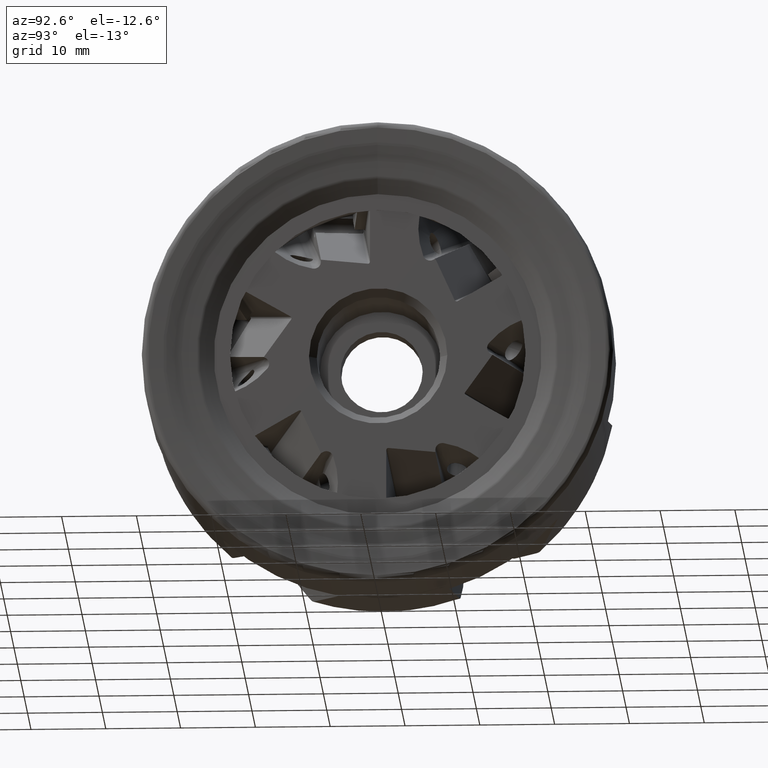
[diagram: clean part render]
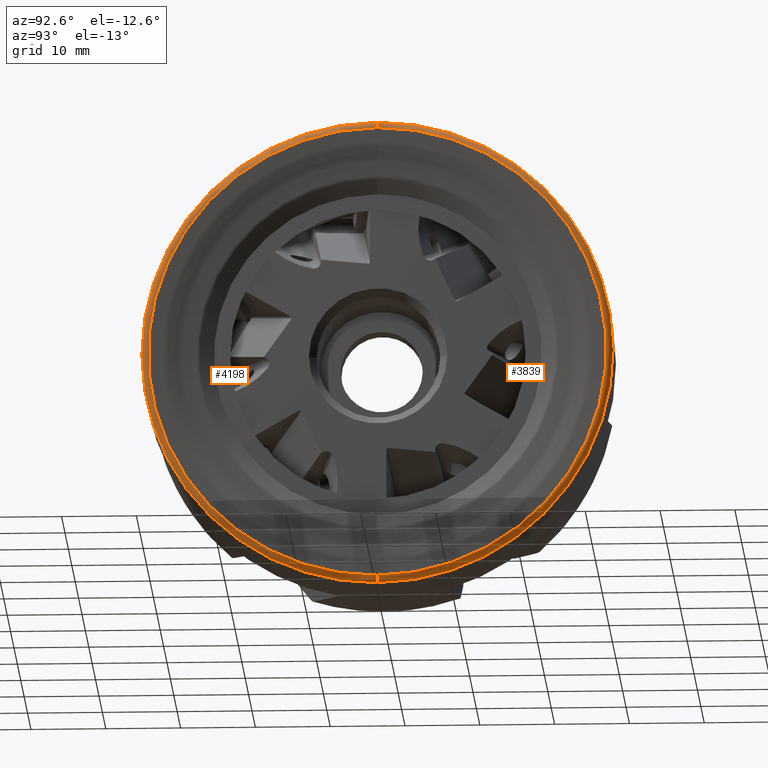
[diagram: same view with one multi-face feature highlighted, each face labeled with its STEP entity id]
A machine part, auxiliary view. The highlighted faces form ONE feature: a constant-radius fillet chain: 2 tangent blend faces with common blend radius 0.8209 mm. The faces share edges in the B-rep.
Their STEP definitions:
[1] entity #3839 (Torus):
#1625 = EDGE_LOOP ( 'NONE', ( #2797, #2800, #2701, #2794 ) ) ;
#2701 = ORIENTED_EDGE ( 'NONE', *, *, #7894, .F. ) ;
#2794 = ORIENTED_EDGE ( 'NONE', *, *, #7993, .F. ) ;
#2797 = ORIENTED_EDGE ( 'NONE', *, *, #7988, .T. ) ;
#2800 = ORIENTED_EDGE ( 'NONE', *, *, #7983, .T. ) ;
#3210 = CIRCLE ( 'NONE', #9495, 0.8209166078095020400 ) ;
#3282 = VERTEX_POINT ( 'NONE', #11634 ) ;
#3346 = VERTEX_POINT ( 'NONE', #11698 ) ;
#3373 = VERTEX_POINT ( 'NONE', #11725 ) ;
#3839 = ADVANCED_FACE ( 'NONE', ( #5910 ), #5915, .T. ) ;
#3880 = VERTEX_POINT ( 'NONE', #5283 ) ;
#5217 = DIRECTION ( 'NONE',  ( 1.000000000000000000, -0.0000000000000000000, -0.0000000000000000000 ) ) ;
#5218 = CARTESIAN_POINT ( 'NONE',  ( 0.9290833921905815600, 0.0000000000000000000, 0.0000000000000000000 ) ) ;
#5220 = DIRECTION ( 'NONE',  ( 0.0000000000000000000, 0.0000000000000000000, -1.000000000000000000 ) ) ;
#5283 = CARTESIAN_POINT ( 'NONE',  ( 1.748095682484515700, 0.0000000000000000000, -30.62637219587720900 ) ) ;
#5910 = FACE_OUTER_BOUND ( 'NONE', #1625, .T. ) ;
#5915 = TOROIDAL_SURFACE ( 'NONE', #7348, 30.68225551472054800, 0.8209166078095036000 ) ;
#7159 = CIRCLE ( 'NONE', #9454, 30.62637219587720900 ) ;
#7269 = CIRCLE ( 'NONE', #9491, 0.8209166078095020400 ) ;
#7274 = CIRCLE ( 'NONE', #9492, 31.49219251073846200 ) ;
#7348 = AXIS2_PLACEMENT_3D ( 'NONE', #5218, #5217, #5220 ) ;
#7894 = EDGE_CURVE ( 'NONE', #3880, #3282, #7159, .T. ) ;
#7983 = EDGE_CURVE ( 'NONE', #3346, #3282, #7269, .T. ) ;
#7988 = EDGE_CURVE ( 'NONE', #3373, #3346, #7274, .T. ) ;
#7993 = EDGE_CURVE ( 'NONE', #3373, #3880, #3210, .T. ) ;
#9454 = AXIS2_PLACEMENT_3D ( 'NONE', #10433, #10435, #10437 ) ;
#9491 = AXIS2_PLACEMENT_3D ( 'NONE', #11155, #11159, #11160 ) ;
#9492 = AXIS2_PLACEMENT_3D ( 'NONE', #11195, #11198, #11200 ) ;
#9495 = AXIS2_PLACEMENT_3D ( 'NONE', #11264, #11267, #11269 ) ;
#10433 = CARTESIAN_POINT ( 'NONE',  ( 1.748095682484515700, 0.0000000000000000000, 0.0000000000000000000 ) ) ;
#10435 = DIRECTION ( 'NONE',  ( 1.000000000000000000, -0.0000000000000000000, -0.0000000000000000000 ) ) ;
#10437 = DIRECTION ( 'NONE',  ( 0.0000000000000000000, 0.0000000000000000000, -1.000000000000000000 ) ) ;
#11155 = CARTESIAN_POINT ( 'NONE',  ( 0.9290833921905815600, 3.757492600672375100E-015, 30.68225551472054800 ) ) ;
#11159 = DIRECTION ( 'NONE',  ( 0.0000000000000000000, 1.000000000000000000, -1.224646799147353200E-016 ) ) ;
#11160 = DIRECTION ( 'NONE',  ( 0.0000000000000000000, 1.224646799147353000E-016, 1.000000000000000000 ) ) ;
#11195 = CARTESIAN_POINT ( 'NONE',  ( 1.062897216061452700, 0.0000000000000000000, 0.0000000000000000000 ) ) ;
#11198 = DIRECTION ( 'NONE',  ( 1.000000000000000000, -0.0000000000000000000, -0.0000000000000000000 ) ) ;
#11200 = DIRECTION ( 'NONE',  ( 0.0000000000000000000, 0.0000000000000000000, -1.000000000000000000 ) ) ;
#11264 = CARTESIAN_POINT ( 'NONE',  ( 0.9290833921905815600, 0.0000000000000000000, -30.68225551472054800 ) ) ;
#11267 = DIRECTION ( 'NONE',  ( -0.0000000000000000000, -1.000000000000000000, -0.0000000000000000000 ) ) ;
#11269 = DIRECTION ( 'NONE',  ( 0.0000000000000000000, 0.0000000000000000000, -1.000000000000000000 ) ) ;
#11634 = CARTESIAN_POINT ( 'NONE',  ( 1.748095682484515700, 3.803665071779231400E-015, 30.62637219587720900 ) ) ;
#11698 = CARTESIAN_POINT ( 'NONE',  ( 1.062897216061452700, 3.857159346477486600E-015, 31.49219251073846200 ) ) ;
#11725 = CARTESIAN_POINT ( 'NONE',  ( 1.062897216061452700, 0.0000000000000000000, -31.49219251073846200 ) ) ;
[2] entity #4198 (Torus):
#153 = EDGE_CURVE ( 'NONE', #3346, #3373, #2941, .T. ) ;
#2338 = EDGE_LOOP ( 'NONE', ( #2494, #2495, #2496, #2497 ) ) ;
#2494 = ORIENTED_EDGE ( 'NONE', *, *, #7983, .F. ) ;
#2495 = ORIENTED_EDGE ( 'NONE', *, *, #153, .T. ) ;
#2496 = ORIENTED_EDGE ( 'NONE', *, *, #7993, .T. ) ;
#2497 = ORIENTED_EDGE ( 'NONE', *, *, #7941, .F. ) ;
#2941 = CIRCLE ( 'NONE', #7253, 31.49219251073846200 ) ;
#3210 = CIRCLE ( 'NONE', #9495, 0.8209166078095020400 ) ;
#3282 = VERTEX_POINT ( 'NONE', #11634 ) ;
#3346 = VERTEX_POINT ( 'NONE', #11698 ) ;
#3373 = VERTEX_POINT ( 'NONE', #11725 ) ;
#3880 = VERTEX_POINT ( 'NONE', #5283 ) ;
#4198 = ADVANCED_FACE ( 'NONE', ( #6115 ), #6118, .T. ) ;
#5283 = CARTESIAN_POINT ( 'NONE',  ( 1.748095682484515700, 0.0000000000000000000, -30.62637219587720900 ) ) ;
#5705 = DIRECTION ( 'NONE',  ( 1.000000000000000000, -0.0000000000000000000, -0.0000000000000000000 ) ) ;
#5713 = CARTESIAN_POINT ( 'NONE',  ( 0.9290833921905815600, 0.0000000000000000000, 0.0000000000000000000 ) ) ;
#5715 = DIRECTION ( 'NONE',  ( 0.0000000000000000000, 0.0000000000000000000, -1.000000000000000000 ) ) ;
#6115 = FACE_OUTER_BOUND ( 'NONE', #2338, .T. ) ;
#6118 = TOROIDAL_SURFACE ( 'NONE', #7453, 30.68225551472054800, 0.8209166078095036000 ) ;
#7219 = CIRCLE ( 'NONE', #9467, 30.62637219587720900 ) ;
#7253 = AXIS2_PLACEMENT_3D ( 'NONE', #10659, #10698, #10700 ) ;
#7269 = CIRCLE ( 'NONE', #9491, 0.8209166078095020400 ) ;
#7453 = AXIS2_PLACEMENT_3D ( 'NONE', #5713, #5705, #5715 ) ;
#7941 = EDGE_CURVE ( 'NONE', #3282, #3880, #7219, .T. ) ;
#7983 = EDGE_CURVE ( 'NONE', #3346, #3282, #7269, .T. ) ;
#7993 = EDGE_CURVE ( 'NONE', #3373, #3880, #3210, .T. ) ;
#9467 = AXIS2_PLACEMENT_3D ( 'NONE', #10807, #10811, #10812 ) ;
#9491 = AXIS2_PLACEMENT_3D ( 'NONE', #11155, #11159, #11160 ) ;
#9495 = AXIS2_PLACEMENT_3D ( 'NONE', #11264, #11267, #11269 ) ;
#10659 = CARTESIAN_POINT ( 'NONE',  ( 1.062897216061452700, 0.0000000000000000000, 0.0000000000000000000 ) ) ;
#10698 = DIRECTION ( 'NONE',  ( 1.000000000000000000, -0.0000000000000000000, -0.0000000000000000000 ) ) ;
#10700 = DIRECTION ( 'NONE',  ( 0.0000000000000000000, 0.0000000000000000000, -1.000000000000000000 ) ) ;
#10807 = CARTESIAN_POINT ( 'NONE',  ( 1.748095682484515700, 0.0000000000000000000, 0.0000000000000000000 ) ) ;
#10811 = DIRECTION ( 'NONE',  ( 1.000000000000000000, -0.0000000000000000000, -0.0000000000000000000 ) ) ;
#10812 = DIRECTION ( 'NONE',  ( 0.0000000000000000000, 0.0000000000000000000, -1.000000000000000000 ) ) ;
#11155 = CARTESIAN_POINT ( 'NONE',  ( 0.9290833921905815600, 3.757492600672375100E-015, 30.68225551472054800 ) ) ;
#11159 = DIRECTION ( 'NONE',  ( 0.0000000000000000000, 1.000000000000000000, -1.224646799147353200E-016 ) ) ;
#11160 = DIRECTION ( 'NONE',  ( 0.0000000000000000000, 1.224646799147353000E-016, 1.000000000000000000 ) ) ;
#11264 = CARTESIAN_POINT ( 'NONE',  ( 0.9290833921905815600, 0.0000000000000000000, -30.68225551472054800 ) ) ;
#11267 = DIRECTION ( 'NONE',  ( -0.0000000000000000000, -1.000000000000000000, -0.0000000000000000000 ) ) ;
#11269 = DIRECTION ( 'NONE',  ( 0.0000000000000000000, 0.0000000000000000000, -1.000000000000000000 ) ) ;
#11634 = CARTESIAN_POINT ( 'NONE',  ( 1.748095682484515700, 3.803665071779231400E-015, 30.62637219587720900 ) ) ;
#11698 = CARTESIAN_POINT ( 'NONE',  ( 1.062897216061452700, 3.857159346477486600E-015, 31.49219251073846200 ) ) ;
#11725 = CARTESIAN_POINT ( 'NONE',  ( 1.062897216061452700, 0.0000000000000000000, -31.49219251073846200 ) ) ;